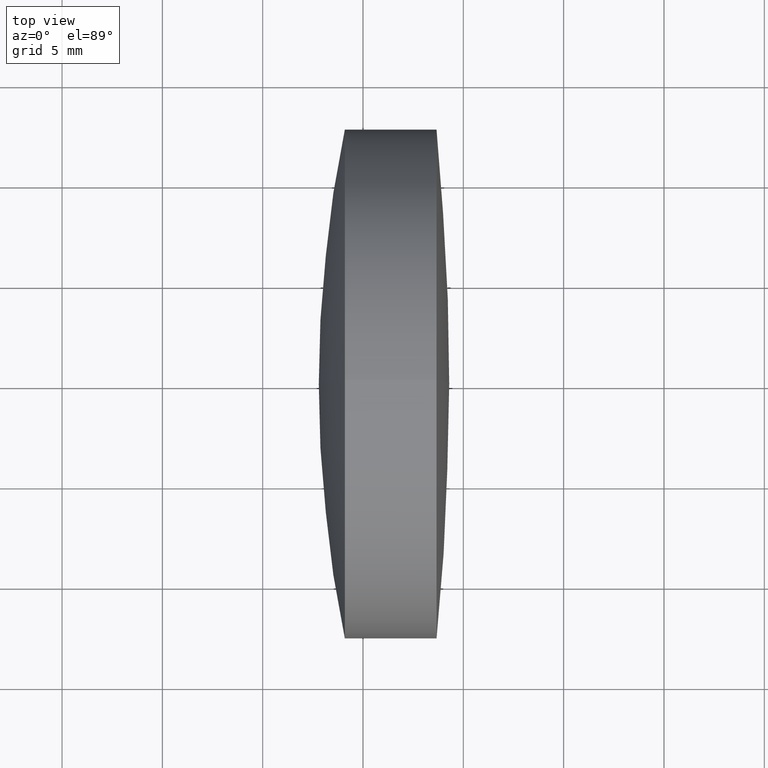
[diagram: clean part render]
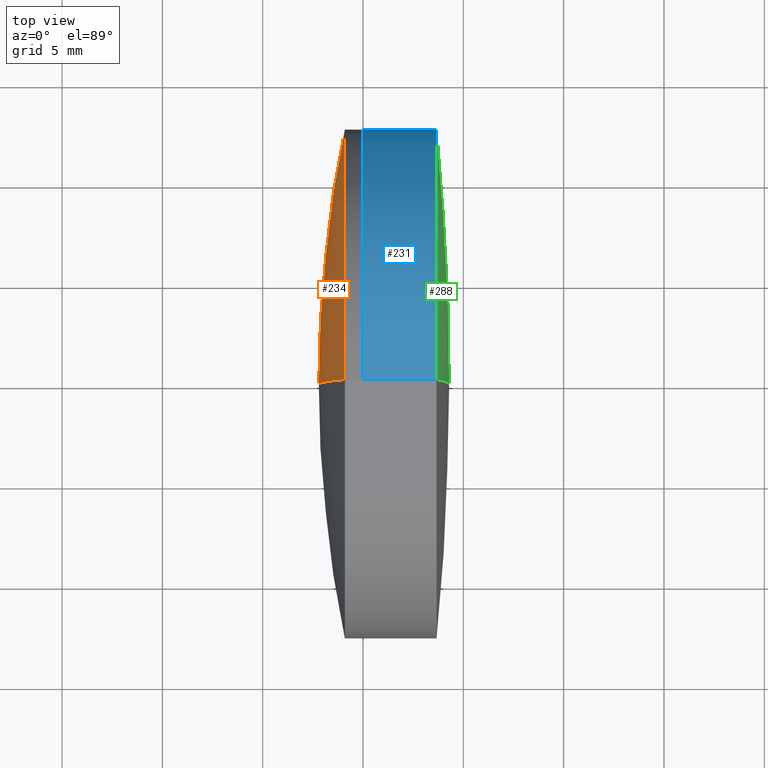
[diagram: same view with three faces highlighted in distinct colors, each labeled with its STEP entity id]
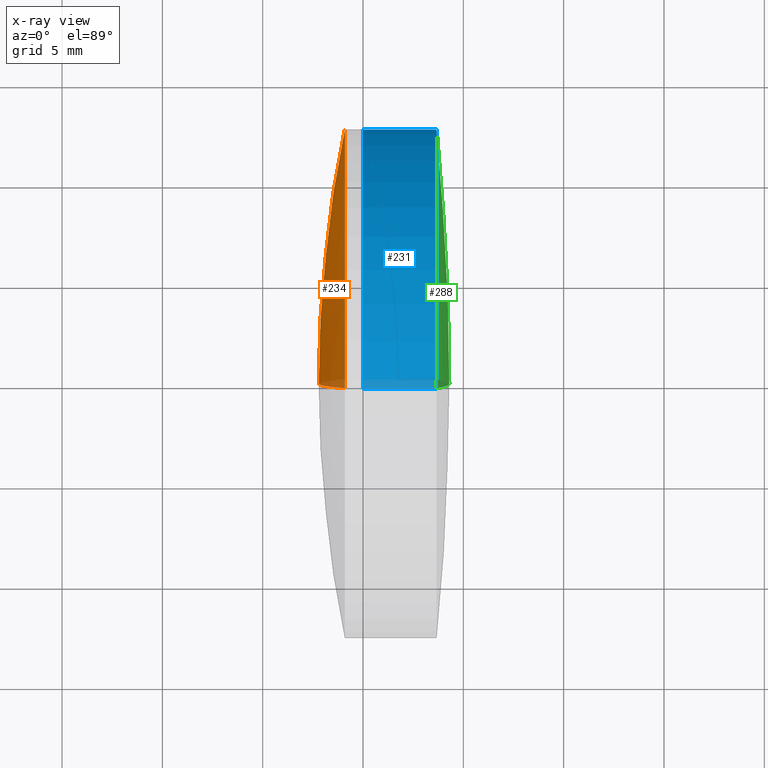
[diagram: x-ray of the same camera — body ghosted, the three highlighted faces saturated]
A machine part, top view with three faces highlighted in distinct colors.
The next image is the same camera in x-ray (body ghosted, the three faces saturated) — at least one of them is partly hidden behind the body in this view.
Their STEP definitions:

[orange] entity #234 — the highlighted spherical surface has radius 62.8 mm.
#5 = VERTEX_POINT ( 'NONE', #275 ) ;
#6 = DIRECTION ( 'NONE',  ( 0.0000000000000000000, 1.000000000000000000, 0.0000000000000000000 ) ) ;
#8 = FACE_OUTER_BOUND ( 'NONE', #26, .T. ) ;
#26 = EDGE_LOOP ( 'NONE', ( #308, #291, #292 ) ) ;
#39 = DIRECTION ( 'NONE',  ( 0.0000000000000000000, -1.224646799147353200E-016, 1.000000000000000000 ) ) ;
#42 = CIRCLE ( 'NONE', #232, 62.79999999999998300 ) ;
#43 = EDGE_CURVE ( 'NONE', #219, #185, #42, .T. ) ;
#67 = DIRECTION ( 'NONE',  ( -0.0000000000000000000, 1.000000000000000000, 1.224646799147353200E-016 ) ) ;
#69 = DIRECTION ( 'NONE',  ( 0.0000000000000000000, -1.000000000000000000, 0.0000000000000000000 ) ) ;
#83 = DIRECTION ( 'NONE',  ( 0.0000000000000000000, 0.0000000000000000000, 1.000000000000000000 ) ) ;
#92 = EDGE_CURVE ( 'NONE', #5, #219, #279, .T. ) ;
#126 = DIRECTION ( 'NONE',  ( 0.0000000000000000000, 0.0000000000000000000, 1.000000000000000000 ) ) ;
#168 = AXIS2_PLACEMENT_3D ( 'NONE', #286, #6, #126 ) ;
#185 = VERTEX_POINT ( 'NONE', #319 ) ;
#193 = SPHERICAL_SURFACE ( 'NONE', #168, 62.79999999999998300 ) ;
#202 = CARTESIAN_POINT ( 'NONE',  ( 254.0934068323917900, 0.0000000000000000000, 0.0000000000000000000 ) ) ;
#205 = AXIS2_PLACEMENT_3D ( 'NONE', #273, #69, #247 ) ;
#206 = CARTESIAN_POINT ( 'NONE',  ( 315.5958458084193700, 0.0000000000000000000, -3.914091062452059200E-015 ) ) ;
#219 = VERTEX_POINT ( 'NONE', #241 ) ;
#229 = DIRECTION ( 'NONE',  ( -1.000000000000000000, -0.0000000000000000000, -0.0000000000000000000 ) ) ;
#232 = AXIS2_PLACEMENT_3D ( 'NONE', #206, #67, #39 ) ;
#234 = ADVANCED_FACE ( 'NONE', ( #8 ), #193, .T. ) ;
#241 = CARTESIAN_POINT ( 'NONE',  ( 254.0934068323917900, 1.555301434917140400E-015, -12.70000000000001900 ) ) ;
#247 = DIRECTION ( 'NONE',  ( 0.0000000000000000000, 0.0000000000000000000, -1.000000000000000000 ) ) ;
#273 = CARTESIAN_POINT ( 'NONE',  ( 315.5958458084193700, 0.0000000000000000000, -3.914091062452059200E-015 ) ) ;
#274 = EDGE_CURVE ( 'NONE', #5, #185, #323, .T. ) ;
#275 = CARTESIAN_POINT ( 'NONE',  ( 254.0934068323917900, 0.0000000000000000000, 12.70000000000001500 ) ) ;
#279 = CIRCLE ( 'NONE', #310, 12.69999999999999400 ) ;
#286 = CARTESIAN_POINT ( 'NONE',  ( 315.5958458084193700, 0.0000000000000000000, -3.914091062452059200E-015 ) ) ;
#291 = ORIENTED_EDGE ( 'NONE', *, *, #43, .T. ) ;
#292 = ORIENTED_EDGE ( 'NONE', *, *, #274, .F. ) ;
#308 = ORIENTED_EDGE ( 'NONE', *, *, #92, .T. ) ;
#310 = AXIS2_PLACEMENT_3D ( 'NONE', #202, #229, #83 ) ;
#319 = CARTESIAN_POINT ( 'NONE',  ( 252.7958458084194100, 0.0000000000000000000, -6.870011312937094700E-017 ) ) ;
#323 = CIRCLE ( 'NONE', #205, 62.79999999999998300 ) ;

[blue] entity #231 — the highlighted cylindrical surface (partial cylindrical patch) has radius 12.7 mm, axis along (-1, -0, -0).
#7 = CARTESIAN_POINT ( 'NONE',  ( -0.5519199926577972300, 0.0000000000000000000, 0.0000000000000000000 ) ) ;
#13 = CARTESIAN_POINT ( 'NONE',  ( -0.5519199926577972300, 1.555301434917138600E-015, -12.70000000000000100 ) ) ;
#17 = VERTEX_POINT ( 'NONE', #46 ) ;
#30 = EDGE_CURVE ( 'NONE', #32, #17, #97, .T. ) ;
#32 = VERTEX_POINT ( 'NONE', #237 ) ;
#36 = ORIENTED_EDGE ( 'NONE', *, *, #183, .F. ) ;
#46 = CARTESIAN_POINT ( 'NONE',  ( 254.9957319130559200, 1.555301434917138400E-015, -12.70000000000000300 ) ) ;
#48 = ORIENTED_EDGE ( 'NONE', *, *, #182, .T. ) ;
#52 = CYLINDRICAL_SURFACE ( 'NONE', #199, 12.70000000000000100 ) ;
#72 = ORIENTED_EDGE ( 'NONE', *, *, #30, .T. ) ;
#74 = CARTESIAN_POINT ( 'NONE',  ( 254.9957319130559200, 0.0000000000000000000, 12.69999999999999900 ) ) ;
#97 = LINE ( 'NONE', #13, #314 ) ;
#99 = CARTESIAN_POINT ( 'NONE',  ( -0.5519199926577972300, 0.0000000000000000000, 12.70000000000000100 ) ) ;
#100 = FACE_OUTER_BOUND ( 'NONE', #196, .T. ) ;
#132 = VERTEX_POINT ( 'NONE', #154 ) ;
#140 = VERTEX_POINT ( 'NONE', #74 ) ;
#142 = DIRECTION ( 'NONE',  ( -1.000000000000000000, -0.0000000000000000000, -0.0000000000000000000 ) ) ;
#154 = CARTESIAN_POINT ( 'NONE',  ( 258.6652386893144400, 0.0000000000000000000, 12.69999999999999600 ) ) ;
#158 = ORIENTED_EDGE ( 'NONE', *, *, #163, .F. ) ;
#163 = EDGE_CURVE ( 'NONE', #132, #140, #330, .T. ) ;
#182 = EDGE_CURVE ( 'NONE', #132, #32, #225, .T. ) ;
#183 = EDGE_CURVE ( 'NONE', #140, #17, #347, .T. ) ;
#196 = EDGE_LOOP ( 'NONE', ( #48, #72, #36, #158 ) ) ;
#199 = AXIS2_PLACEMENT_3D ( 'NONE', #7, #280, #327 ) ;
#209 = DIRECTION ( 'NONE',  ( -1.000000000000000000, -0.0000000000000000000, -0.0000000000000000000 ) ) ;
#215 = CARTESIAN_POINT ( 'NONE',  ( 254.9957319130559200, 0.0000000000000000000, 0.0000000000000000000 ) ) ;
#225 = CIRCLE ( 'NONE', #289, 12.69999999999999600 ) ;
#226 = CARTESIAN_POINT ( 'NONE',  ( 258.6652386893144400, 0.0000000000000000000, 0.0000000000000000000 ) ) ;
#231 = ADVANCED_FACE ( 'NONE', ( #100 ), #52, .T. ) ;
#237 = CARTESIAN_POINT ( 'NONE',  ( 258.6652386893144400, 1.555301434917138200E-015, -12.69999999999999600 ) ) ;
#248 = DIRECTION ( 'NONE',  ( -1.000000000000000000, -0.0000000000000000000, -0.0000000000000000000 ) ) ;
#271 = DIRECTION ( 'NONE',  ( 0.0000000000000000000, 0.0000000000000000000, 1.000000000000000000 ) ) ;
#280 = DIRECTION ( 'NONE',  ( -1.000000000000000000, -0.0000000000000000000, -0.0000000000000000000 ) ) ;
#289 = AXIS2_PLACEMENT_3D ( 'NONE', #226, #337, #322 ) ;
#309 = AXIS2_PLACEMENT_3D ( 'NONE', #215, #248, #271 ) ;
#311 = VECTOR ( 'NONE', #142, 1000.000000000000000 ) ;
#314 = VECTOR ( 'NONE', #209, 1000.000000000000000 ) ;
#322 = DIRECTION ( 'NONE',  ( 0.0000000000000000000, 0.0000000000000000000, 1.000000000000000000 ) ) ;
#327 = DIRECTION ( 'NONE',  ( 0.0000000000000000000, 0.0000000000000000000, 1.000000000000000000 ) ) ;
#330 = LINE ( 'NONE', #99, #311 ) ;
#337 = DIRECTION ( 'NONE',  ( -1.000000000000000000, -0.0000000000000000000, -0.0000000000000000000 ) ) ;
#347 = CIRCLE ( 'NONE', #309, 12.70000000000000600 ) ;

[green] entity #288 — the highlighted spherical surface has radius 128.2 mm.
#32 = VERTEX_POINT ( 'NONE', #237 ) ;
#44 = EDGE_CURVE ( 'NONE', #62, #132, #200, .T. ) ;
#62 = VERTEX_POINT ( 'NONE', #256 ) ;
#73 = DIRECTION ( 'NONE',  ( -0.0000000000000000000, 1.000000000000000000, 1.224646799147353200E-016 ) ) ;
#84 = AXIS2_PLACEMENT_3D ( 'NONE', #96, #102, #315 ) ;
#88 = FACE_OUTER_BOUND ( 'NONE', #329, .T. ) ;
#96 = CARTESIAN_POINT ( 'NONE',  ( 131.0958458084200500, 0.0000000000000000000, 0.0000000000000000000 ) ) ;
#102 = DIRECTION ( 'NONE',  ( 0.0000000000000000000, 1.000000000000000000, 0.0000000000000000000 ) ) ;
#105 = ORIENTED_EDGE ( 'NONE', *, *, #182, .F. ) ;
#132 = VERTEX_POINT ( 'NONE', #154 ) ;
#147 = EDGE_CURVE ( 'NONE', #62, #32, #266, .T. ) ;
#148 = AXIS2_PLACEMENT_3D ( 'NONE', #165, #228, #189 ) ;
#150 = ORIENTED_EDGE ( 'NONE', *, *, #44, .F. ) ;
#154 = CARTESIAN_POINT ( 'NONE',  ( 258.6652386893144400, 0.0000000000000000000, 12.69999999999999600 ) ) ;
#165 = CARTESIAN_POINT ( 'NONE',  ( 131.0958458084200500, 0.0000000000000000000, 0.0000000000000000000 ) ) ;
#169 = DIRECTION ( 'NONE',  ( 0.0000000000000000000, -1.224646799147353200E-016, 1.000000000000000000 ) ) ;
#182 = EDGE_CURVE ( 'NONE', #132, #32, #225, .T. ) ;
#189 = DIRECTION ( 'NONE',  ( 0.0000000000000000000, 0.0000000000000000000, -1.000000000000000000 ) ) ;
#200 = CIRCLE ( 'NONE', #148, 128.1999999999999900 ) ;
#211 = CARTESIAN_POINT ( 'NONE',  ( 131.0958458084200500, 0.0000000000000000000, 0.0000000000000000000 ) ) ;
#216 = AXIS2_PLACEMENT_3D ( 'NONE', #211, #73, #169 ) ;
#220 = ORIENTED_EDGE ( 'NONE', *, *, #147, .T. ) ;
#225 = CIRCLE ( 'NONE', #289, 12.69999999999999600 ) ;
#226 = CARTESIAN_POINT ( 'NONE',  ( 258.6652386893144400, 0.0000000000000000000, 0.0000000000000000000 ) ) ;
#228 = DIRECTION ( 'NONE',  ( 0.0000000000000000000, -1.000000000000000000, 0.0000000000000000000 ) ) ;
#237 = CARTESIAN_POINT ( 'NONE',  ( 258.6652386893144400, 1.555301434917138200E-015, -12.69999999999999600 ) ) ;
#256 = CARTESIAN_POINT ( 'NONE',  ( 259.2958458084200400, 0.0000000000000000000, 7.849985982534533100E-015 ) ) ;
#266 = CIRCLE ( 'NONE', #216, 128.1999999999999900 ) ;
#267 = SPHERICAL_SURFACE ( 'NONE', #84, 128.1999999999999900 ) ;
#288 = ADVANCED_FACE ( 'NONE', ( #88 ), #267, .T. ) ;
#289 = AXIS2_PLACEMENT_3D ( 'NONE', #226, #337, #322 ) ;
#315 = DIRECTION ( 'NONE',  ( 0.0000000000000000000, 0.0000000000000000000, 1.000000000000000000 ) ) ;
#322 = DIRECTION ( 'NONE',  ( 0.0000000000000000000, 0.0000000000000000000, 1.000000000000000000 ) ) ;
#329 = EDGE_LOOP ( 'NONE', ( #150, #220, #105 ) ) ;
#337 = DIRECTION ( 'NONE',  ( -1.000000000000000000, -0.0000000000000000000, -0.0000000000000000000 ) ) ;